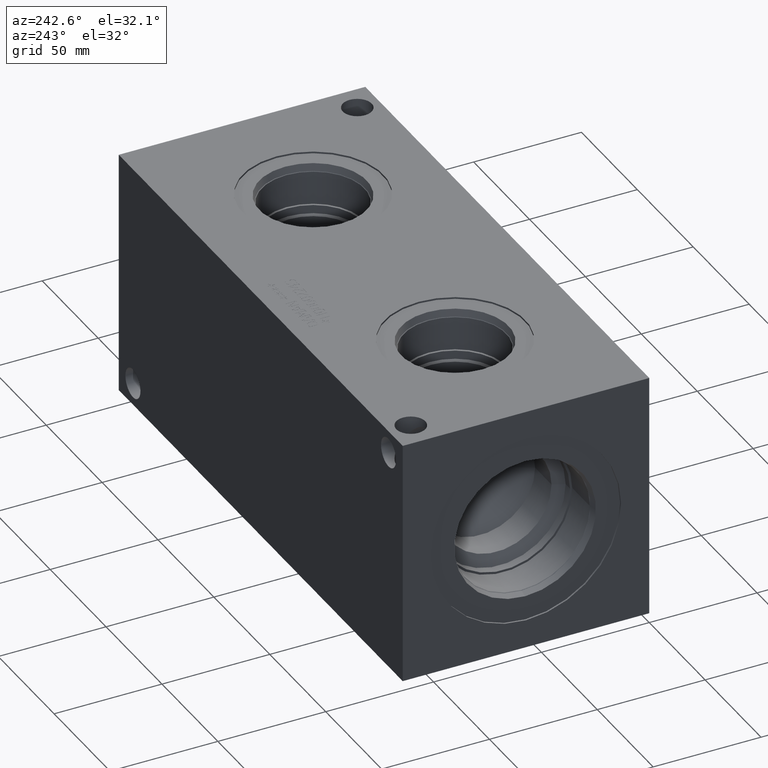
[diagram: clean part render]
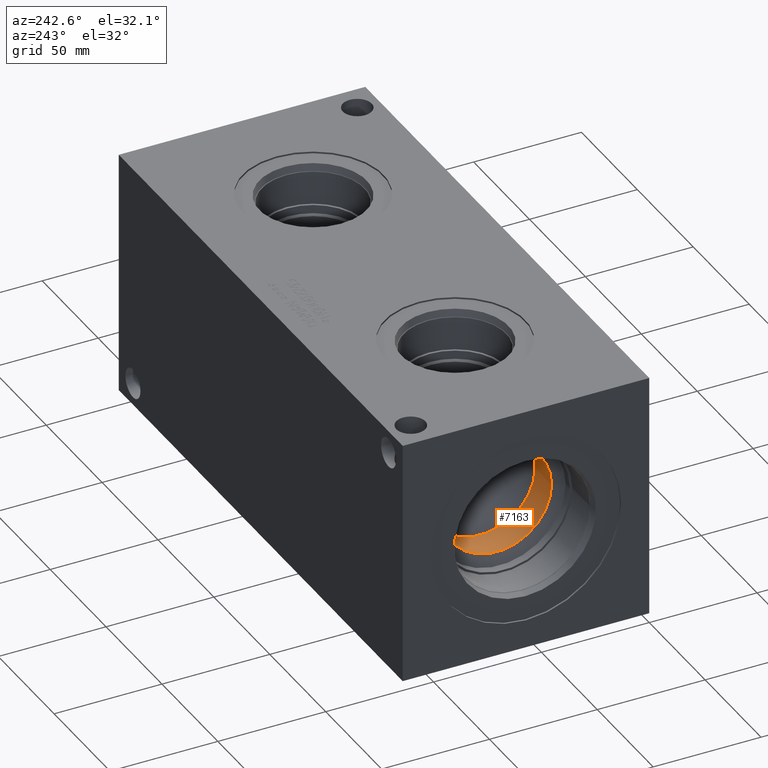
[diagram: same view with one face highlighted and labeled with its STEP entity id]
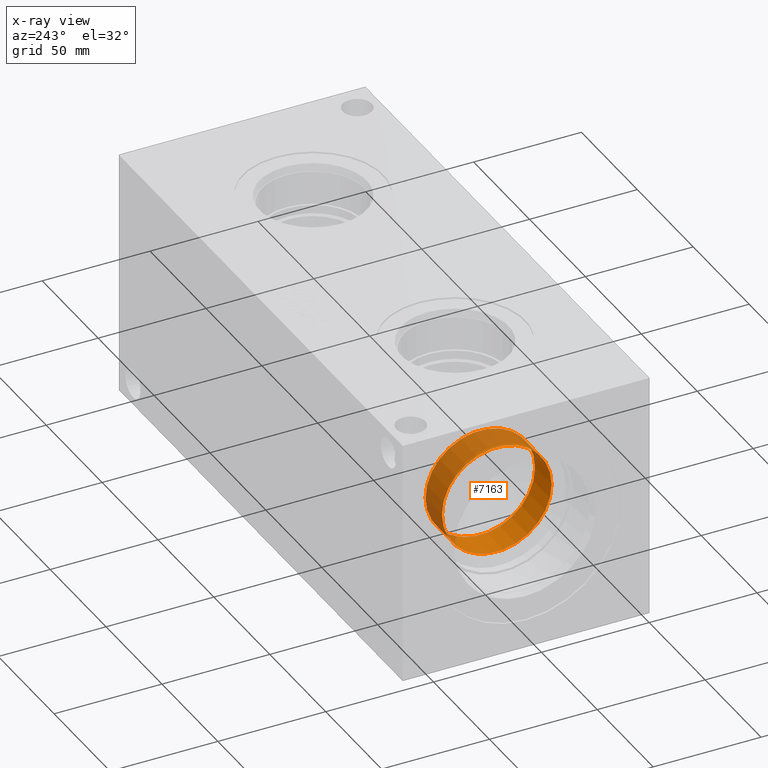
[diagram: x-ray of the same camera — body ghosted, the highlighted face saturated]
A machine part, auxiliary view. The second image highlights one B-rep face of the part: STEP entity #7163.
The next image is the same camera in x-ray: the body ghosted, the highlighted face saturated — about 47% of this face is hidden behind the body in this view.
In plain terms, the highlighted cylindrical surface (bore or boss wall) has radius 25.4 mm, axis along (-1, 0, 0).
Its self-contained STEP definition (entity closure, byte-faithful):
#61=CYLINDRICAL_SURFACE('',#7524,25.4);
#135=CIRCLE('',#7522,25.4);
#136=CIRCLE('',#7523,25.4);
#137=CIRCLE('',#7525,25.4);
#838=FACE_OUTER_BOUND('',#1239,.T.);
#1239=EDGE_LOOP('',(#6209,#6210,#6211,#6212,#6213));
#1948=LINE('',#12212,#2647);
#2647=VECTOR('',#8909,25.4);
#3301=VERTEX_POINT('',#12203);
#3302=VERTEX_POINT('',#12204);
#3304=VERTEX_POINT('',#12210);
#4279=EDGE_CURVE('',#3301,#3302,#135,.T.);
#4281=EDGE_CURVE('',#3302,#3301,#136,.T.);
#4282=EDGE_CURVE('',#3304,#3304,#137,.T.);
#4283=EDGE_CURVE('',#3304,#3302,#1948,.T.);
#6209=ORIENTED_EDGE('',*,*,#4282,.F.);
#6210=ORIENTED_EDGE('',*,*,#4283,.T.);
#6211=ORIENTED_EDGE('',*,*,#4279,.F.);
#6212=ORIENTED_EDGE('',*,*,#4281,.F.);
#6213=ORIENTED_EDGE('',*,*,#4283,.F.);
#7163=ADVANCED_FACE('',(#838),#61,.F.);
#7522=AXIS2_PLACEMENT_3D('',#12205,#8900,#8901);
#7523=AXIS2_PLACEMENT_3D('',#12208,#8903,#8904);
#7524=AXIS2_PLACEMENT_3D('',#12209,#8905,#8906);
#7525=AXIS2_PLACEMENT_3D('',#12211,#8907,#8908);
#8900=DIRECTION('center_axis',(-1.,0.,0.));
#8901=DIRECTION('ref_axis',(0.,1.,0.));
#8903=DIRECTION('center_axis',(-1.,0.,0.));
#8904=DIRECTION('ref_axis',(0.,1.,0.));
#8905=DIRECTION('center_axis',(-1.,0.,0.));
#8906=DIRECTION('ref_axis',(0.,1.,0.));
#8907=DIRECTION('center_axis',(1.,0.,0.));
#8908=DIRECTION('ref_axis',(0.,1.,0.));
#8909=DIRECTION('',(1.,0.,0.));
#12203=CARTESIAN_POINT('',(40.83369,82.55,57.15));
#12204=CARTESIAN_POINT('',(40.83369,31.75,57.15));
#12205=CARTESIAN_POINT('Origin',(40.83369,57.15,57.15));
#12208=CARTESIAN_POINT('Origin',(40.83369,57.15,57.15));
#12209=CARTESIAN_POINT('Origin',(20.416845,57.15,57.15));
#12210=CARTESIAN_POINT('',(26.1689954031323,31.75,57.15));
#12211=CARTESIAN_POINT('Origin',(26.1689954031323,57.15,57.15));
#12212=CARTESIAN_POINT('',(20.416845,31.75,57.15));